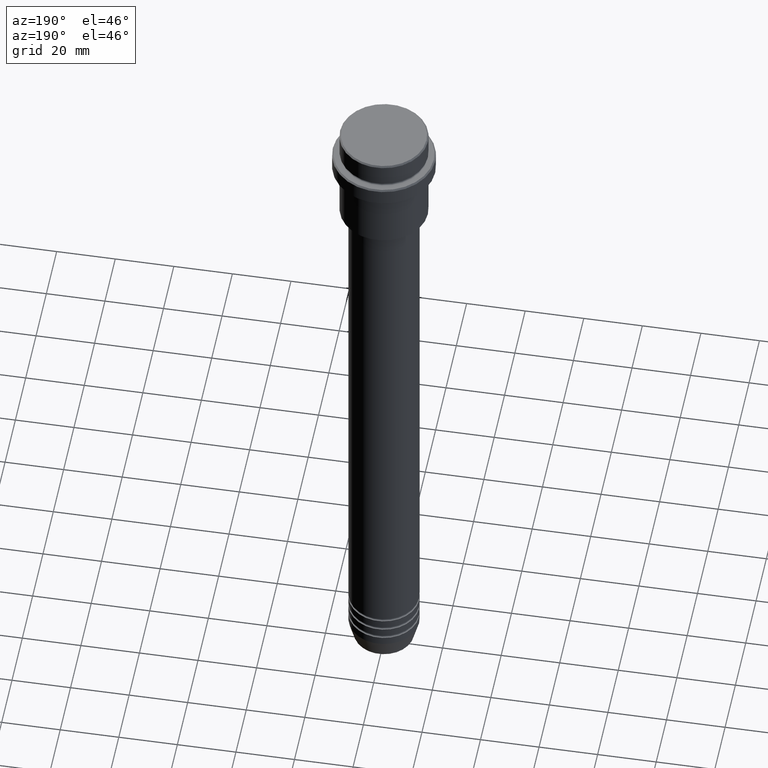
[diagram: clean part render]
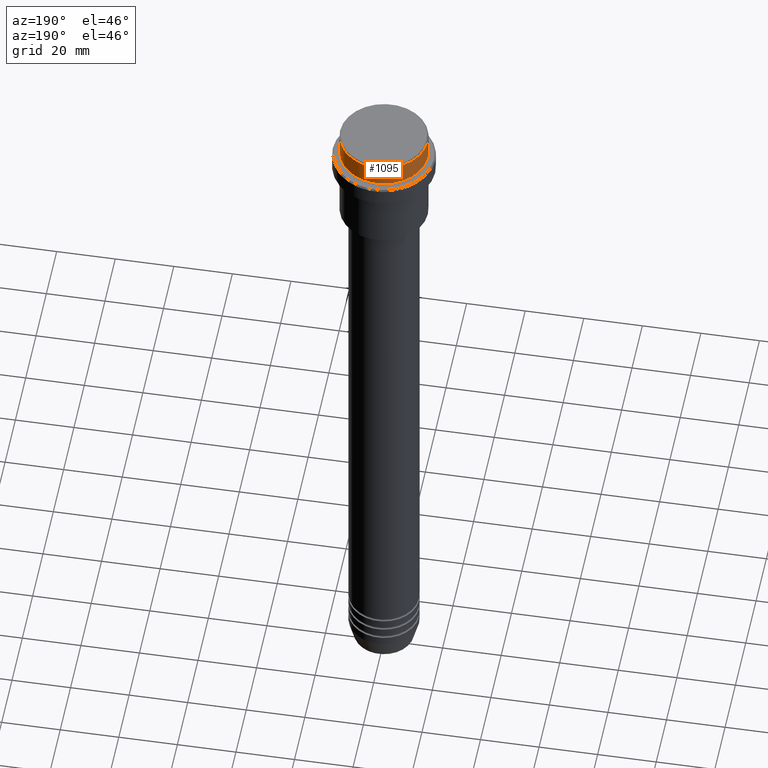
[diagram: same view with one face highlighted and labeled with its STEP entity id]
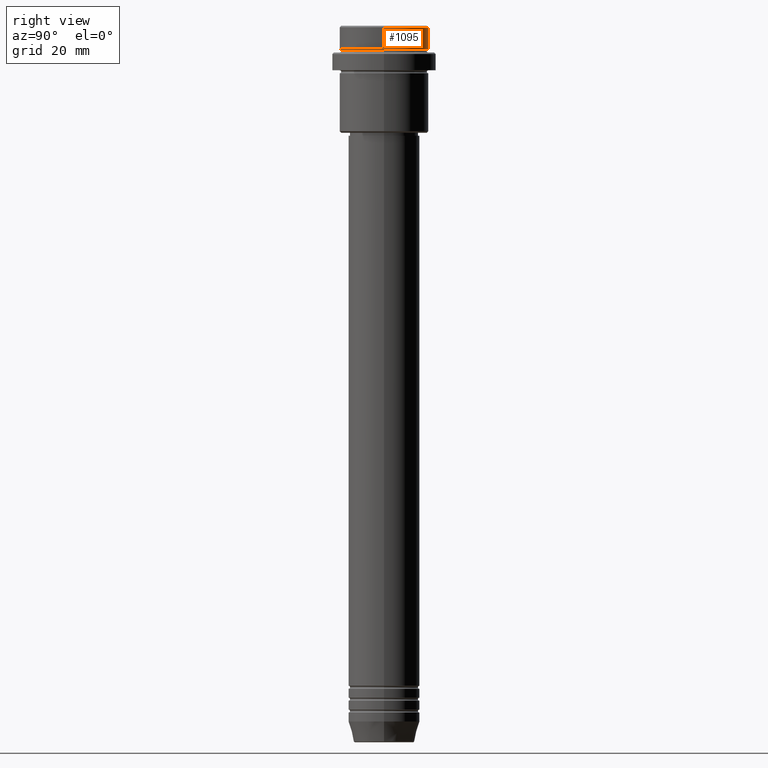
[diagram: same view with one face highlighted and labeled with its STEP entity id]
A machine part, auxiliary view. The second image highlights one B-rep face of the part: STEP entity #1095.
A second angle (right view) of the same face is appended — the face is thin or edge-on in the first view.
In plain terms, the highlighted cylindrical surface (partial cylindrical patch) has radius 15 mm, axis along (-0, -0, 1).
Its self-contained STEP definition (entity closure, byte-faithful):
#52 = VECTOR ( 'NONE', #99, 1000.000000000000000 ) ;
#59 = CARTESIAN_POINT ( 'NONE',  ( -15.00000000000000000, 1.836970198721029589E-15, -7.999999999999998224 ) ) ;
#99 = DIRECTION ( 'NONE',  ( -0.000000000000000000, -0.000000000000000000, 1.000000000000000000 ) ) ;
#120 = CARTESIAN_POINT ( 'NONE',  ( 15.00000000000000000, 0.000000000000000000, -7.999999999999998224 ) ) ;
#124 = VECTOR ( 'NONE', #968, 1000.000000000000000 ) ;
#132 = CARTESIAN_POINT ( 'NONE',  ( 15.00000000000000000, 0.000000000000000000, -0.5000000000000662803 ) ) ;
#143 = AXIS2_PLACEMENT_3D ( 'NONE', #1368, #1254, #938 ) ;
#149 = DIRECTION ( 'NONE',  ( 0.000000000000000000, 0.000000000000000000, -1.000000000000000000 ) ) ;
#173 = ORIENTED_EDGE ( 'NONE', *, *, #674, .T. ) ;
#196 = ORIENTED_EDGE ( 'NONE', *, *, #467, .T. ) ;
#387 = CYLINDRICAL_SURFACE ( 'NONE', #1326, 15.00000000000000000 ) ;
#453 = EDGE_LOOP ( 'NONE', ( #173, #736, #196, #1223 ) ) ;
#467 = EDGE_CURVE ( 'NONE', #625, #1362, #1227, .T. ) ;
#480 = CARTESIAN_POINT ( 'NONE',  ( 0.000000000000000000, 0.000000000000000000, 0.000000000000000000 ) ) ;
#530 = CIRCLE ( 'NONE', #143, 15.00000000000000000 ) ;
#535 = LINE ( 'NONE', #634, #52 ) ;
#539 = LINE ( 'NONE', #1289, #124 ) ;
#625 = VERTEX_POINT ( 'NONE', #951 ) ;
#628 = VERTEX_POINT ( 'NONE', #59 ) ;
#634 = CARTESIAN_POINT ( 'NONE',  ( -15.00000000000000000, 1.836970198721029589E-15, 0.000000000000000000 ) ) ;
#674 = EDGE_CURVE ( 'NONE', #1322, #628, #530, .T. ) ;
#736 = ORIENTED_EDGE ( 'NONE', *, *, #1175, .T. ) ;
#932 = DIRECTION ( 'NONE',  ( -0.000000000000000000, -0.000000000000000000, 1.000000000000000000 ) ) ;
#938 = DIRECTION ( 'NONE',  ( 1.000000000000000000, 0.000000000000000000, 0.000000000000000000 ) ) ;
#947 = FACE_OUTER_BOUND ( 'NONE', #453, .T. ) ;
#951 = CARTESIAN_POINT ( 'NONE',  ( -15.00000000000000000, 1.836970198721029589E-15, -0.5000000000000662803 ) ) ;
#968 = DIRECTION ( 'NONE',  ( -0.000000000000000000, -0.000000000000000000, 1.000000000000000000 ) ) ;
#1075 = AXIS2_PLACEMENT_3D ( 'NONE', #1127, #149, #1087 ) ;
#1087 = DIRECTION ( 'NONE',  ( 1.000000000000000000, 0.000000000000000000, 0.000000000000000000 ) ) ;
#1095 = ADVANCED_FACE ( 'NONE', ( #947 ), #387, .T. ) ;
#1127 = CARTESIAN_POINT ( 'NONE',  ( 0.000000000000000000, 0.000000000000000000, -0.5000000000000662803 ) ) ;
#1175 = EDGE_CURVE ( 'NONE', #628, #625, #535, .T. ) ;
#1223 = ORIENTED_EDGE ( 'NONE', *, *, #1286, .F. ) ;
#1227 = CIRCLE ( 'NONE', #1075, 15.00000000000000000 ) ;
#1254 = DIRECTION ( 'NONE',  ( -0.000000000000000000, -0.000000000000000000, 1.000000000000000000 ) ) ;
#1286 = EDGE_CURVE ( 'NONE', #1322, #1362, #539, .T. ) ;
#1289 = CARTESIAN_POINT ( 'NONE',  ( 15.00000000000000000, 0.000000000000000000, 0.000000000000000000 ) ) ;
#1322 = VERTEX_POINT ( 'NONE', #120 ) ;
#1326 = AXIS2_PLACEMENT_3D ( 'NONE', #480, #932, #1357 ) ;
#1357 = DIRECTION ( 'NONE',  ( 1.000000000000000000, 0.000000000000000000, 0.000000000000000000 ) ) ;
#1362 = VERTEX_POINT ( 'NONE', #132 ) ;
#1368 = CARTESIAN_POINT ( 'NONE',  ( 0.000000000000000000, 0.000000000000000000, -7.999999999999998224 ) ) ;